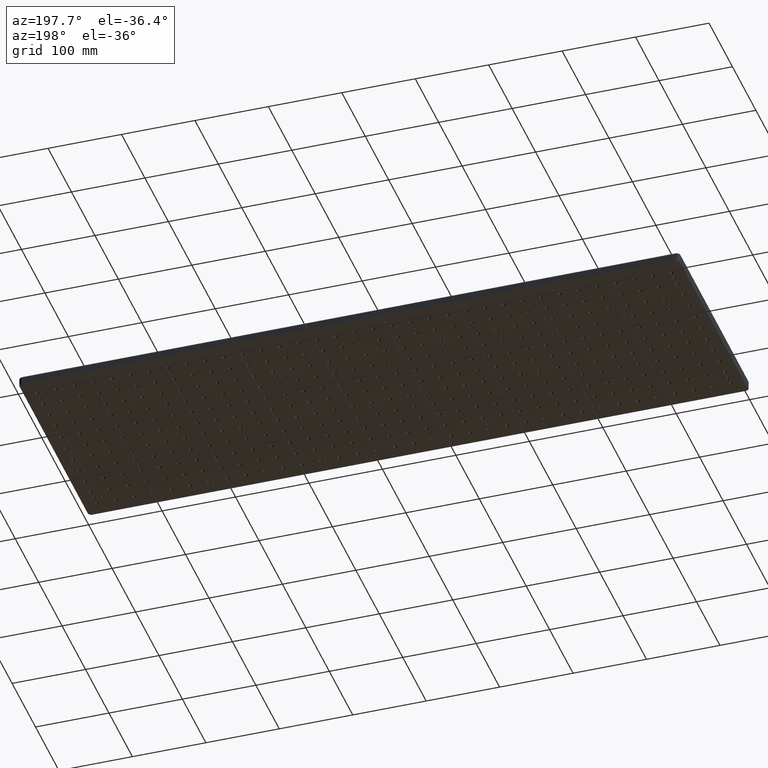
[diagram: clean part render]
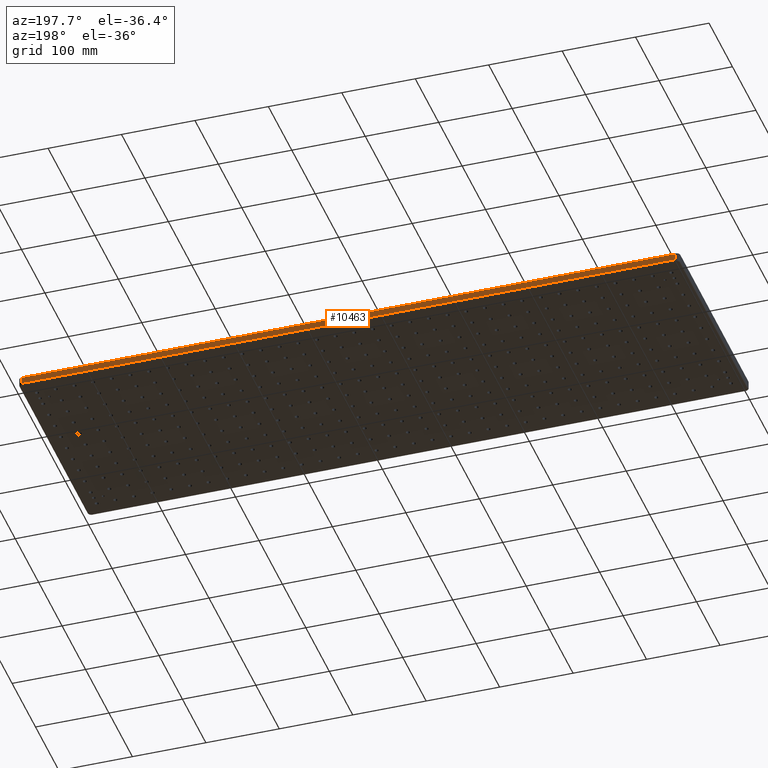
[diagram: same view with one face highlighted and labeled with its STEP entity id]
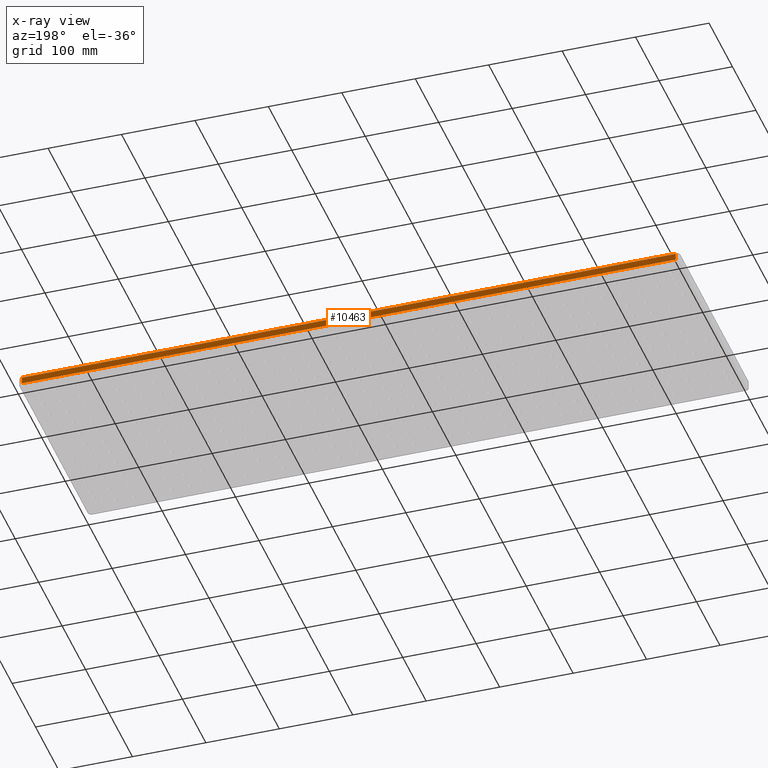
[diagram: x-ray of the same camera — body ghosted, the highlighted face saturated]
A machine part, auxiliary view. The second image highlights one B-rep face of the part: STEP entity #10463.
The next image is the same camera in x-ray: the body ghosted, the highlighted face saturated — about 0% of this face is hidden behind the body in this view.
In plain terms, the highlighted planar face has unit normal (0, 1, 0).
Its self-contained STEP definition (entity closure, byte-faithful):
#248 = DIRECTION ( 'NONE',  ( 0.0000000000000000000, 1.000000000000000000, 0.0000000000000000000 ) ) ;
#1028 = ORIENTED_EDGE ( 'NONE', *, *, #20440, .T. ) ;
#1194 = VECTOR ( 'NONE', #9152, 1000.000000000000000 ) ;
#1853 = LINE ( 'NONE', #10977, #14211 ) ;
#1950 = CARTESIAN_POINT ( 'NONE',  ( 4.999999999999998200, 300.0000000000000000, -11.00000000000000000 ) ) ;
#2423 = EDGE_CURVE ( 'NONE', #12599, #14890, #7132, .T. ) ;
#4612 = DIRECTION ( 'NONE',  ( 0.0000000000000000000, -0.0000000000000000000, 1.000000000000000000 ) ) ;
#4823 = CARTESIAN_POINT ( 'NONE',  ( 4.999999999999998200, 300.0000000000000000, -13.00000000000000000 ) ) ;
#6015 = AXIS2_PLACEMENT_3D ( 'NONE', #25336, #248, #4612 ) ;
#6515 = DIRECTION ( 'NONE',  ( 1.000000000000000000, -0.0000000000000000000, 0.0000000000000000000 ) ) ;
#7132 = LINE ( 'NONE', #4823, #16977 ) ;
#8475 = ORIENTED_EDGE ( 'NONE', *, *, #9872, .T. ) ;
#9152 = DIRECTION ( 'NONE',  ( -1.000000000000000000, 0.0000000000000000000, 0.0000000000000000000 ) ) ;
#9463 = CARTESIAN_POINT ( 'NONE',  ( 4.999999999999998200, 300.0000000000000000, -2.000000000000000000 ) ) ;
#9872 = EDGE_CURVE ( 'NONE', #14890, #19200, #13775, .T. ) ;
#10005 = CARTESIAN_POINT ( 'NONE',  ( 895.0000000000000000, 300.0000000000000000, -2.000000000000000000 ) ) ;
#10463 = ADVANCED_FACE ( 'NONE', ( #12991 ), #11492, .T. ) ;
#10977 = CARTESIAN_POINT ( 'NONE',  ( 895.0000000000000000, 300.0000000000000000, -13.00000000000000000 ) ) ;
#11492 = PLANE ( 'NONE',  #6015 ) ;
#12194 = EDGE_LOOP ( 'NONE', ( #19164, #1028, #15934, #8475 ) ) ;
#12599 = VERTEX_POINT ( 'NONE', #1950 ) ;
#12991 = FACE_OUTER_BOUND ( 'NONE', #12194, .T. ) ;
#13775 = LINE ( 'NONE', #27754, #23972 ) ;
#14209 = EDGE_CURVE ( 'NONE', #19200, #16669, #1853, .T. ) ;
#14211 = VECTOR ( 'NONE', #20246, 1000.000000000000000 ) ;
#14890 = VERTEX_POINT ( 'NONE', #9463 ) ;
#15934 = ORIENTED_EDGE ( 'NONE', *, *, #2423, .T. ) ;
#16669 = VERTEX_POINT ( 'NONE', #26462 ) ;
#16977 = VECTOR ( 'NONE', #28186, 1000.000000000000000 ) ;
#17530 = LINE ( 'NONE', #27655, #1194 ) ;
#19164 = ORIENTED_EDGE ( 'NONE', *, *, #14209, .T. ) ;
#19200 = VERTEX_POINT ( 'NONE', #10005 ) ;
#20246 = DIRECTION ( 'NONE',  ( -0.0000000000000000000, 0.0000000000000000000, -1.000000000000000000 ) ) ;
#20440 = EDGE_CURVE ( 'NONE', #16669, #12599, #17530, .T. ) ;
#23972 = VECTOR ( 'NONE', #6515, 1000.000000000000000 ) ;
#25336 = CARTESIAN_POINT ( 'NONE',  ( 0.0000000000000000000, 300.0000000000000000, -13.00000000000000000 ) ) ;
#26462 = CARTESIAN_POINT ( 'NONE',  ( 895.0000000000000000, 300.0000000000000000, -11.00000000000000000 ) ) ;
#27655 = CARTESIAN_POINT ( 'NONE',  ( 0.0000000000000000000, 300.0000000000000000, -11.00000000000000000 ) ) ;
#27754 = CARTESIAN_POINT ( 'NONE',  ( 895.0000000000000000, 300.0000000000000000, -2.000000000000000000 ) ) ;
#28186 = DIRECTION ( 'NONE',  ( 0.0000000000000000000, -0.0000000000000000000, 1.000000000000000000 ) ) ;